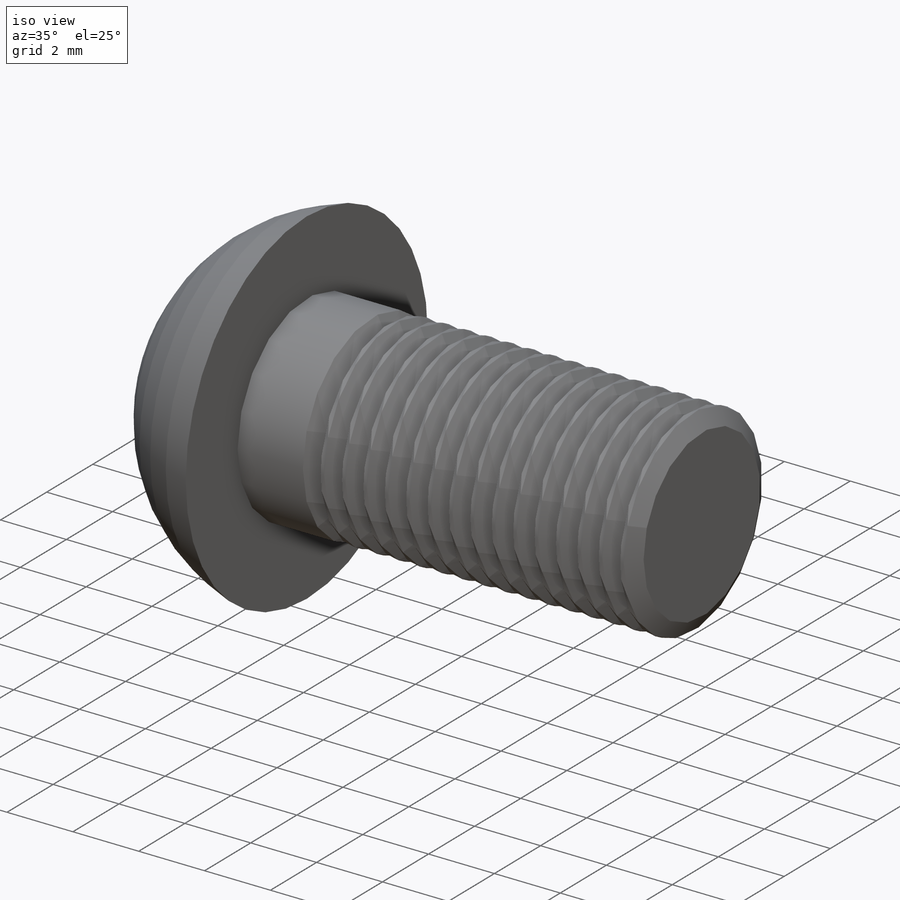
[diagram: iso view]
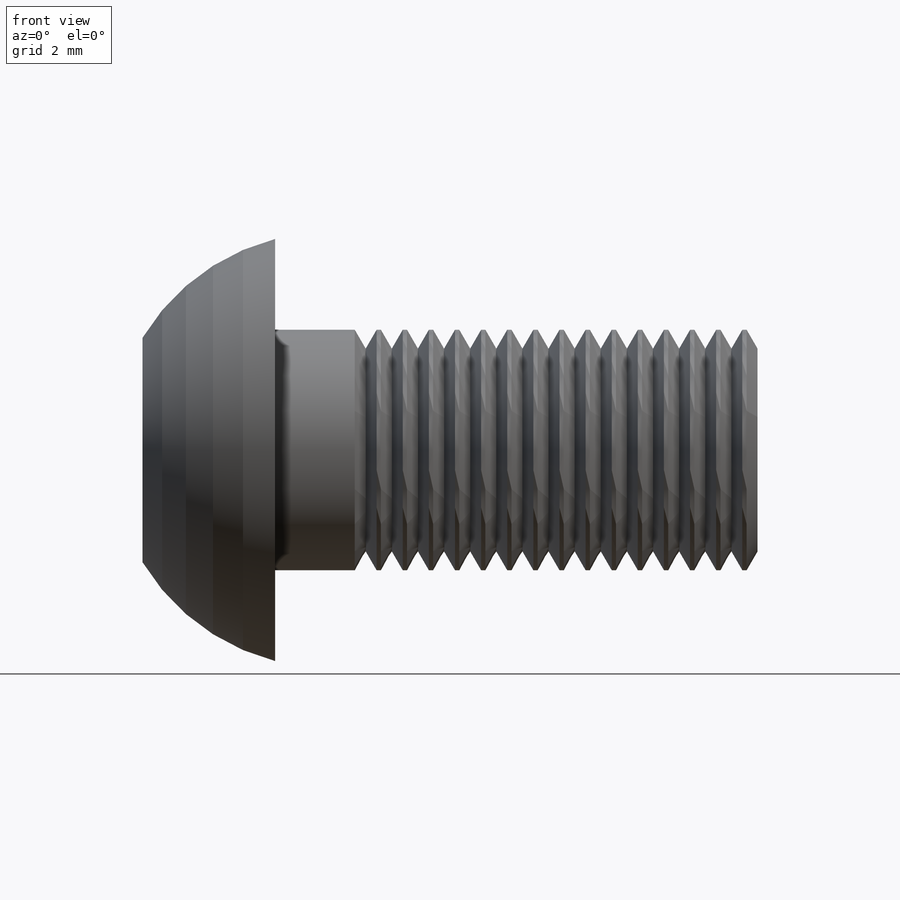
[diagram: front view]
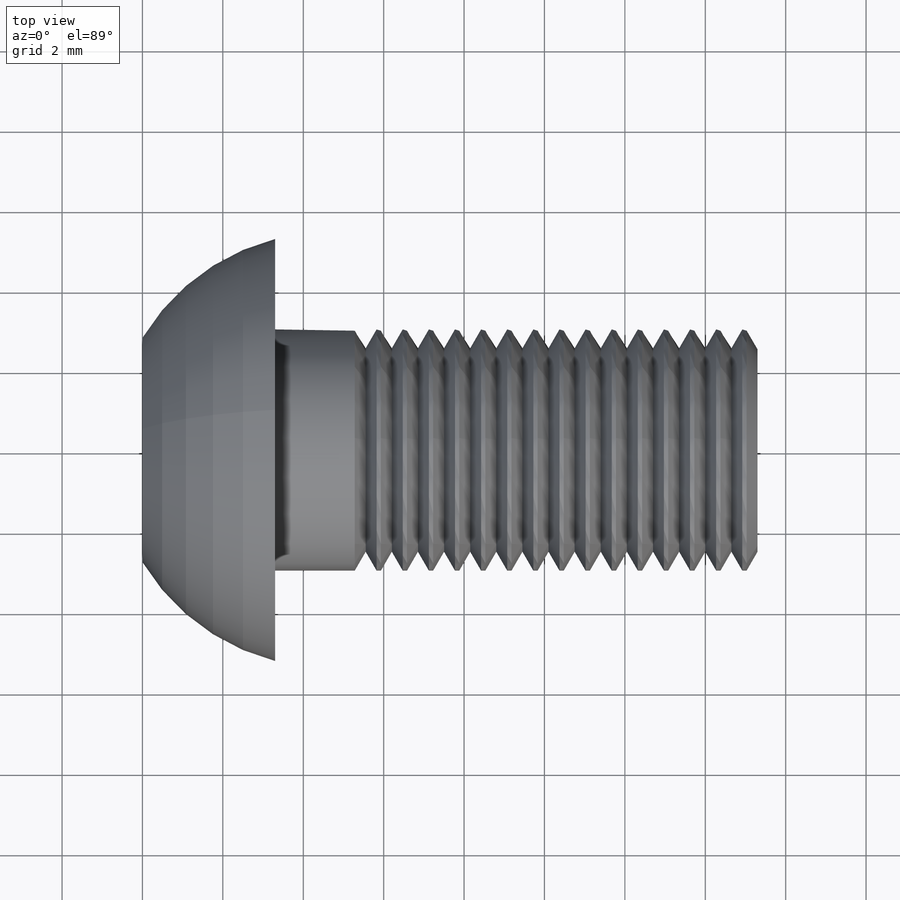
[diagram: top view]
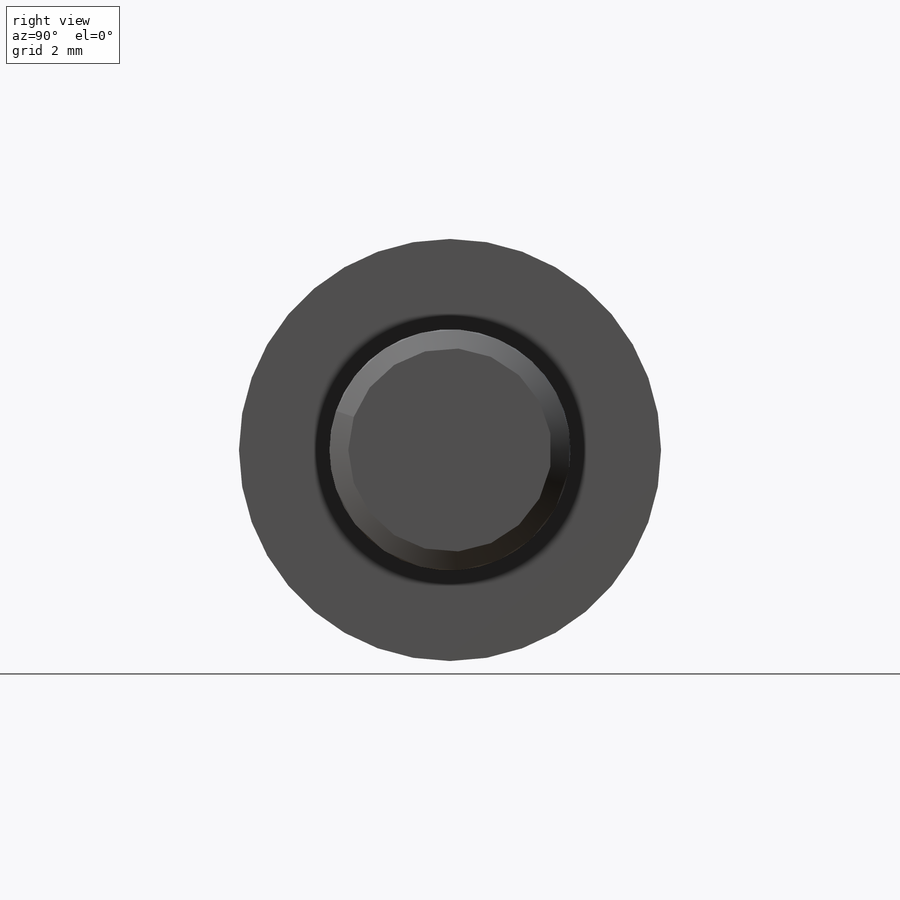
[diagram: right view]
SOLIDWORKS PART (.sldprt)
format: sldprt  version: not decoded by parser v0  size: 318,464 bytes
history: native  units: mm
features: sketch x6, extrude x2, cut_revolve x2, cut_extrude x2, material x1, thread x1, fillet x1, pattern_linear x1 (+15 scaffold rows collapsed; 1 parser-record rows omitted)
feature tree (32):
  parser-record x1  (decoder bookkeeping rows leaked as tree rows — omitted from the tree; the rows remain in map.json)
  scaffold x15  (default folders/planes/origin — collapsed)
  material  "材质 <未指定>"
  sketch  "Sketch1"  dims[dk=10.5mm a=2.0mm]
  extrude  "BaseHead"  Depth=3.3mm k=3.3mm
  sketch  "Sketch2"  dims[d=6.0mm]
  extrude  "BaseBody"  [1 undecoded]
  thread  "ThreadCosmetic1"  Diameter=10mm THD_MINOR=4.917mm l=12mm  [1 undecoded]
  fillet  "HeadFillet"  Radius=0.25mm r=0.25mm
  sketch  "Sketch3"  dims[c1.rf=10.0mm c1.D2=5.0mm c1.e=5.58mm c2.D2=5.0mm c2.D3=5.0mm c2.D4=8.3mm]
  cut_revolve  "Cut-Revolve1"  Angle=360deg
  sketch  "Sketch4"  dims[s=4.0mm]
  cut_extrude  "HexagonSocket"  Depth=2.08mm t=2.08mm
  sketch  "Sketch5"
  cut_extrude  "Cut-Extrude2"  Depth=5mm
  sketch  "Sketch6"  dims[D1=0.5415mm D2=6.0mm]
  cut_revolve  "Cut-Revolve10"  Angle=360deg
  pattern_linear  "LPattern10"  Count1=16 Count2=1 Spacing1=0.6498mm Spacing2=50mm ConfigurationName=0mm CopiedFlag=1 PartNumberID=0mm
decode coverage: 13 of 15 modeling features carry decoded parameters
note: 2 parameter values undecoded
note: suppression state not decoded; provenance and decode notes live in map.json
